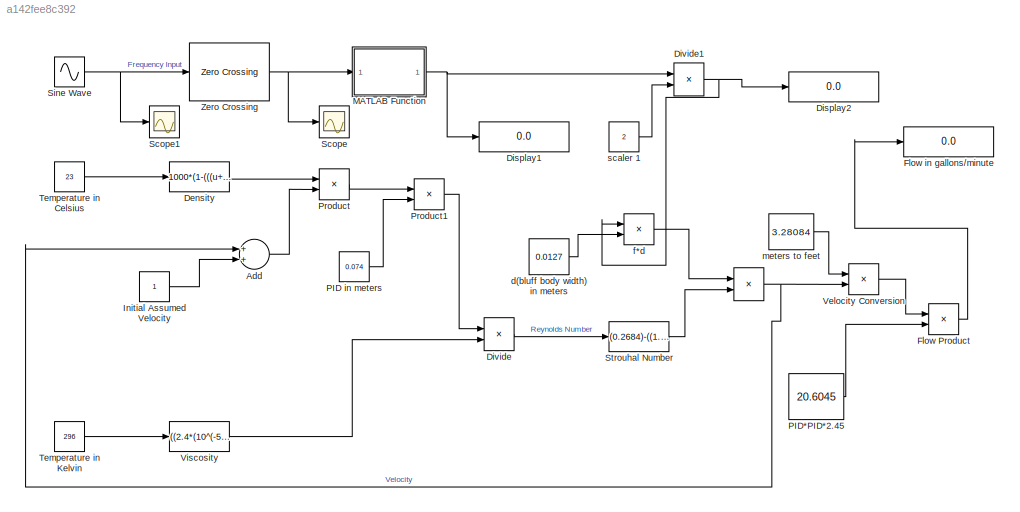
MODEL slx_a142fee8c392
KIND model
CONFIG AbsTol = auto
CONFIG EnableMultiTasking = off
CONFIG FixedStep = auto
CONFIG MaxStep = auto
CONFIG MinStep = auto
CONFIG RelTol = 1e-3
CONFIG SampleTimeConstraint = Unconstrained
CONFIG Solver = VariableStepAuto
CONFIG SolverName = VariableStepAuto
CONFIG StartTime = 0.0
CONFIG StopTime = 30
BLOCK [Product]  
  InputSameDT = off
  Inputs = */
  OutDataTypeStr = Inherit: Inherit via internal rule
  Ports = [2, 1]
  RndMeth = Floor
  SaturateOnIntegerOverflow = off
BLOCK [Sum] Add
  InputSameDT = off
  OutDataTypeStr = Inherit: Inherit via internal rule
  Ports = [2, 1]
  SaturateOnIntegerOverflow = off
BLOCK [Fcn] Density 
  Expr = 1000*(1-(((u+288.9414)/((508929.2)*(u+68.12963)))*((u-3.9863)^2)))
BLOCK [Display] Display1
  Decimation = 1
  Ports = [1]
BLOCK [Display] Display2
  Decimation = 1
  Ports = [1]
BLOCK [Product] Divide
  InputSameDT = off
  Inputs = */
  OutDataTypeStr = Inherit: Inherit via internal rule
  Ports = [2, 1]
  RndMeth = Floor
  SaturateOnIntegerOverflow = off
BLOCK [Product] Divide1
  InputSameDT = off
  Inputs = */
  OutDataTypeStr = Inherit: Inherit via internal rule
  Ports = [2, 1]
  RndMeth = Floor
  SaturateOnIntegerOverflow = off
BLOCK [Product] Flow Product
  InputSameDT = off
  OutDataTypeStr = Inherit: Inherit via internal rule
  Ports = [2, 1]
  RndMeth = Floor
  SaturateOnIntegerOverflow = off
BLOCK [Display] Flow in gallons//minute 
  Decimation = 1
  Ports = [1]
BLOCK [Constant] Initial Assumed Velocity
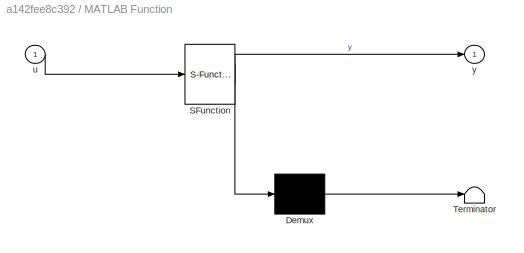
BLOCK [SubSystem] MATLAB Function
  ErrorFcn = Stateflow.Translate.translate
  PermitHierarchicalResolution = ExplicitOnly
  Ports = [1, 1]
  RequestExecContextInheritance = off
  SFBlockType = MATLAB Function
  TreatAsAtomicUnit = on
  Variant = off
BLOCK [Demux] MATLAB Function/ Demux 
  Outputs = 1
  Ports = [1, 1]
BLOCK [S-Function] MATLAB Function/ SFunction 
  EnableBusSupport = on
  FunctionName = sf_sfun
  PortCounts = [1 2]
  Ports = [1, 2]
  SFcnIsStateOwnerBlock = off
  SFunctionDeploymentMode = off
  Tag = Stateflow S-Function Flow_Meter 2
BLOCK [Terminator] MATLAB Function/ Terminator 
BLOCK [Inport] MATLAB Function/u
  IconDisplay = Port number
BLOCK [Outport] MATLAB Function/y
  IconDisplay = Port number
BLOCK [Constant] PID in meters
  Value = 0.074
BLOCK [Constant] PID*PID*2.45
  Value = 20.6045
BLOCK [Product] Product
  InputSameDT = off
  OutDataTypeStr = Inherit: Inherit via internal rule
  Ports = [2, 1]
  RndMeth = Floor
  SaturateOnIntegerOverflow = off
BLOCK [Product] Product1
  InputSameDT = off
  OutDataTypeStr = Inherit: Inherit via internal rule
  Ports = [2, 1]
  RndMeth = Floor
  SaturateOnIntegerOverflow = off
BLOCK [Scope] Scope
  NumInputPorts = 1
  Ports = [1]
  ScopeSpecificationString = Simulink.scopes.TimeScopeBlockCfg('CurrentConfiguration', extmgr.ConfigurationSet(extmgr.Configuration('Core','General UI',true),extmgr.Configuration('Core','Source UI',true),extmgr.Configuration('Sources','WiredSimulink',true),extmgr.Configuration('Visuals','Time Domain',true,'SerializedDisplays',{struct('MinYLimReal','-0.125','MaxYLimReal','1.125','YLabelReal','','MinYLimMag','0.00000','MaxYLimM...<+1411ch>
BLOCK [Scope] Scope1
  NumInputPorts = 1
  Ports = [1]
  ScopeSpecificationString = Simulink.scopes.TimeScopeBlockCfg('CurrentConfiguration', extmgr.ConfigurationSet(extmgr.Configuration('Core','General UI',true),extmgr.Configuration('Core','Source UI',true),extmgr.Configuration('Sources','WiredSimulink',true,'DataLoggingVariableName','ScopeData1'),extmgr.Configuration('Visuals','Time Domain',true,'SerializedDisplays',{struct('MinYLimReal','-5.41266','MaxYLimReal','5.41266','YLab...<+1449ch>
BLOCK [Sin] Sine Wave 
  Amplitude = 5
  Frequency = 2*pi*2000
  Ports = [0, 1]
  SampleTime = 0
  Samples = 5
  VectorParams1D = off
BLOCK [Fcn] Strouhal Number
  Expr = (0.2684)-((1.0356)/(sqrt(u)))
BLOCK [Constant] Temperature in Celsius
  Value = 23
BLOCK [Constant] Temperature in Kelvin 
  Value = 296
BLOCK [Product] Velocity Conversion
  InputSameDT = off
  OutDataTypeStr = Inherit: Inherit via internal rule
  Ports = [2, 1]
  RndMeth = Floor
  SaturateOnIntegerOverflow = off
BLOCK [Fcn] Viscosity
  Expr = ((2.4*(10^(-5)))*(10^(247.8/(u-140))))
BLOCK [Reference] Zero Crossing  REF=dspsigops/Zero Crossing
  Ports = [1, 1]
  SourceBlock = dspsigops/Zero Crossing
  SourceProductBaseCode = DS
  SourceProductName = DSP System Toolbox
  SourceType = Zero Crossing
  UserDataPersistent = on
BLOCK [Constant] d(bluff body width) in meters
  Value = 0.0127
BLOCK [Product] f*d
  InputSameDT = off
  OutDataTypeStr = Inherit: Inherit via internal rule
  Ports = [2, 1]
  RndMeth = Floor
  SaturateOnIntegerOverflow = off
BLOCK [Constant] meters to feet 
  Value = 3.28084
BLOCK [Constant] scaler 1
  Value = 2
NET  :1 -> Add:1, Velocity Conversion:2
LINE Add:1 -> Product:2
LINE Density :1 -> Product:1
NET Divide1:1 -> Display2:1, f*d:1
LINE Divide:1 -> Strouhal Number:1
LINE Flow Product:1 -> Flow in gallons//minute :1
LINE Initial Assumed Velocity:1 -> Add:2
NET MATLAB Function:1 -> Display1:1, Divide1:1
LINE PID in meters:1 -> Product1:2
LINE PID*PID*2.45:1 -> Flow Product:2
LINE Product1:1 -> Divide:1
LINE Product:1 -> Product1:1
NET Sine Wave :1 -> Scope1:1, Zero Crossing:1
LINE Strouhal Number:1 ->  :2
LINE Temperature in Celsius:1 -> Density :1
LINE Temperature in Kelvin :1 -> Viscosity:1
LINE Velocity Conversion:1 -> Flow Product:1
LINE Viscosity:1 -> Divide:2
NET Zero Crossing:1 -> MATLAB Function:1, Scope:1
LINE d(bluff body width) in meters:1 -> f*d:2
LINE f*d:1 ->  :1
LINE meters to feet :1 -> Velocity Conversion:1
LINE scaler 1:1 -> Divide1:2
note: NET lines group one-source signal fan-out (src -> all destinations, sorted); 1:1 wires keep LINE
CHART MATLAB Function states=1 transitions=1
  STATE_LABEL 'eML_blk_kernel()'
  STATE_LABEL 'SCRIPT:\nfunction y = fcn(u)\npersistent count1\nif isempty(count1)\n    count1=1\nend\nif u > 0\n    count1=count1+1\nend\ny = count1;\n'
